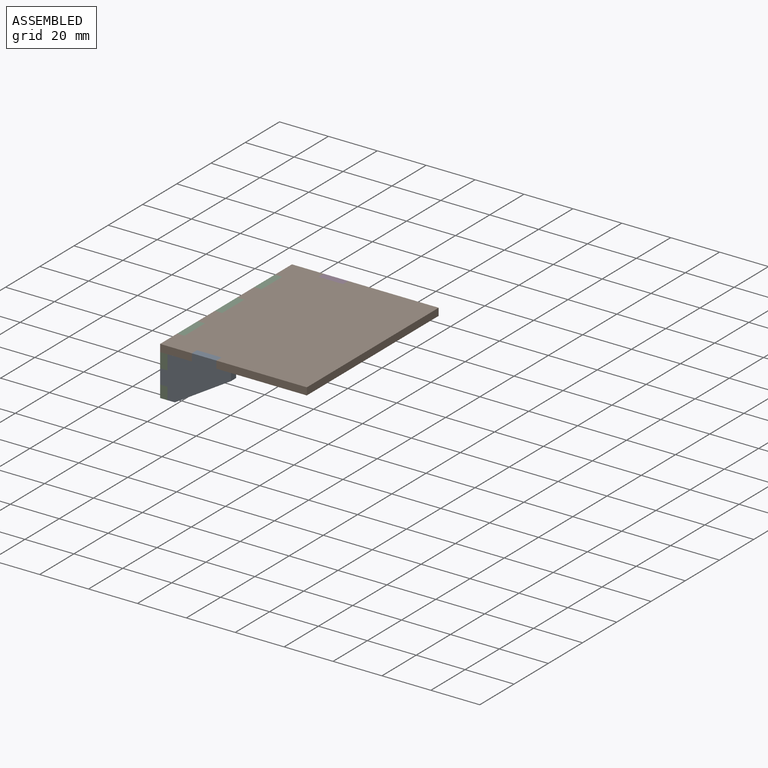
[diagram: assembled view]
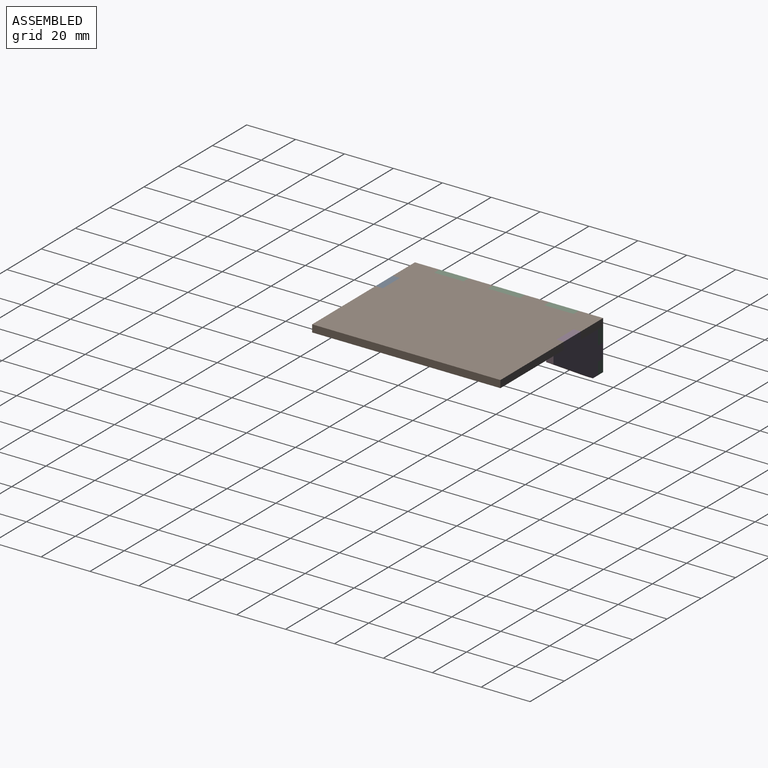
[diagram: assembled view, second angle]
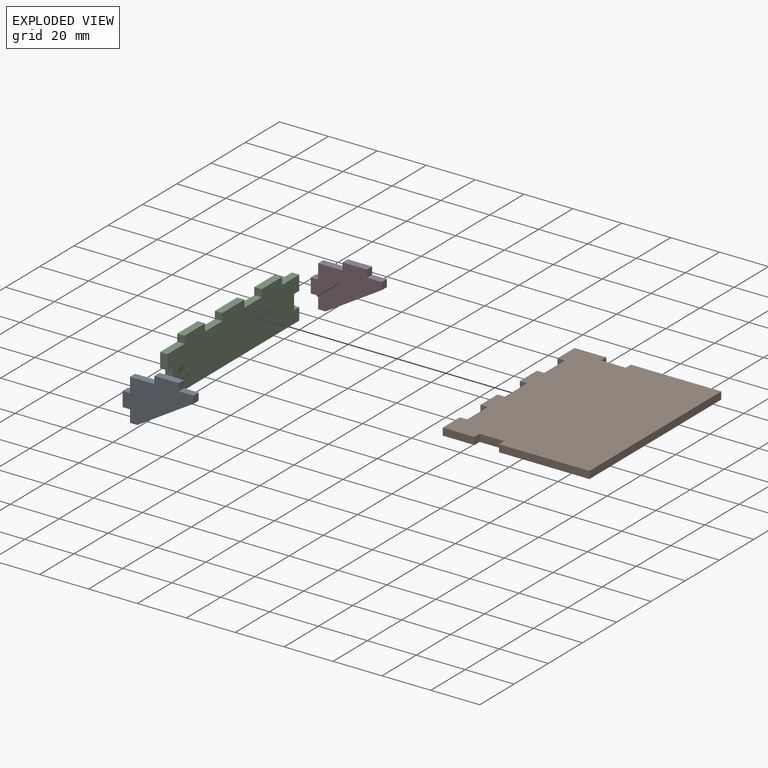
[diagram: exploded view]
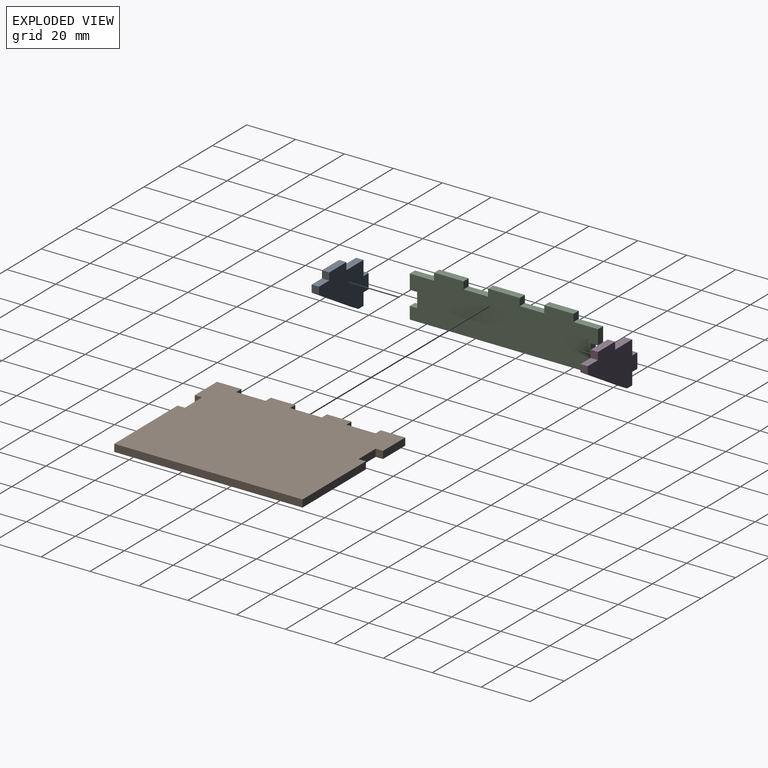
[diagram: exploded view, second angle]
ASSEMBLY  parts=4 mates=11
PART A: 15 faces, bbox 29x3x20 mm
  f0: plane 5x3mm, normal (-1,0,0), area 15mm2, adj f1,f12,f13,f14
  f1: plane 3x3mm, normal (0,0,-1), area 9mm2, adj f0,f2,f13,f14
  f2: plane 23x14mm, normal (0.52,0,-0.85), area 80.8mm2, adj f1,f3,f13,f14
  f3: plane 3x3mm, normal (1,0,0), area 9mm2, adj f2,f4,f13,f14
  f4: plane 6x3mm, normal (0,0,1), area 18mm2, adj f3,f5,f13,f14
  f5: plane 3x3mm, normal (1,0,0), area 9mm2, adj f4,f6,f13,f14
  f6: plane 10x3mm, normal (0,0,1), area 30mm2, adj f5,f7,f13,f14
  f7: plane 3x3mm, normal (-1,0,0), area 9mm2, adj f6,f8,f13,f14
  f8: plane 10x3mm, normal (0,0,1), area 30mm2, adj f7,f9,f13,f14
  f9: plane 6x3mm, normal (-1,0,0), area 18mm2, adj f8,f10,f13,f14
  f10: plane 3x3mm, normal (0,0,1), area 9mm2, adj f9,f11,f13,f14
  f11: plane 6x3mm, normal (-1,0,0), area 18mm2, adj f10,f12,f13,f14
  f12: plane 3x3mm, normal (0,0,-1), area 9mm2, adj f0,f11,f13,f14
  f13: plane 29x20mm, normal (0,-1,0), area 329mm2, adj f0,f1,f2,f3,f4,f5,f6,f7
  f14: plane 29x20mm, normal (0,1,0), area 329mm2, adj f0,f1,f2,f3,f4,f5,f6,f7
PART B: 26 faces, bbox 77x3x60 mm
  f0: plane 37x3mm, normal (1,0,0), area 111mm2, adj f2,f3,f15,f21
  f1: plane 37x3mm, normal (-1,0,0), area 111mm2, adj f2,f3,f15,f25
  f2: plane 77x60mm, normal (0,-1,0), area 4449mm2, adj f0,f1,f4,f5,f6,f7,f8,f9
  f3: plane 77x60mm, normal (0,1,0), area 4449mm2, adj f0,f1,f4,f5,f6,f7,f8,f9
  f4: plane 3x3mm, normal (-1,0,0), area 9mm2, adj f2,f3,f5,f19
  f5: plane 10x3mm, normal (0,0,-1), area 30mm2, adj f2,f3,f4,f6
  f6: plane 3x3mm, normal (1,0,0), area 9mm2, adj f2,f3,f5,f7
  f7: plane 13x3mm, normal (0,0,-1), area 39mm2, adj f2,f3,f6,f8
  f8: plane 3x3mm, normal (-1,0,0), area 9mm2, adj f2,f3,f7,f9
  f9: plane 10x3mm, normal (0,0,-1), area 30mm2, adj f2,f3,f8,f10
  f10: plane 3x3mm, normal (1,0,0), area 9mm2, adj f2,f3,f9,f11
  f11: plane 12x3mm, normal (0,0,-1), area 36mm2, adj f2,f3,f10,f12
  f12: plane 3x3mm, normal (-1,0,0), area 9mm2, adj f2,f3,f11,f13
  f13: plane 10x3mm, normal (0,0,-1), area 30mm2, adj f2,f3,f12,f14
  f14: plane 13x3mm, normal (1,0,0), area 39mm2, adj f2,f3,f13,f20
  f15: plane 77x3mm, normal (0,0,1), area 231mm2, adj f0,f1,f2,f3
  f16: plane 13x3mm, normal (-1,0,0), area 39mm2, adj f2,f3,f17,f23
  f17: plane 10x3mm, normal (0,0,-1), area 30mm2, adj f2,f3,f16,f18
  f18: plane 3x3mm, normal (1,0,0), area 9mm2, adj f2,f3,f17,f19
  f19: plane 12x3mm, normal (0,0,-1), area 36mm2, adj f2,f3,f4,f18
  f20: plane 3x3mm, normal (0,0,1), area 9mm2, adj f2,f3,f14,f22
  f21: plane 3x3mm, normal (0,0,-1), area 9mm2, adj f0,f2,f3,f22
  f22: plane 10x3mm, normal (1,0,0), area 30mm2, adj f2,f3,f20,f21
  f23: plane 3x3mm, normal (0,0,1), area 9mm2, adj f2,f3,f16,f24
  f24: plane 10x3mm, normal (-1,0,0), area 30mm2, adj f2,f3,f23,f25
  f25: plane 3x3mm, normal (0,0,-1), area 9mm2, adj f1,f2,f3,f24
PART C: 26 faces, bbox 77x3x20 mm
  f0: plane 6x3mm, normal (-1,0,0), area 18mm2, adj f2,f3,f6,f20
  f1: plane 6x3mm, normal (1,0,0), area 18mm2, adj f2,f3,f10,f23
  f2: plane 77x20mm, normal (0,-1,0), area 1384mm2, adj f0,f1,f4,f5,f6,f7,f8,f9
  f3: plane 77x20mm, normal (0,1,0), area 1384mm2, adj f0,f1,f4,f5,f6,f7,f8,f9
  f4: plane 12x3mm, normal (0,0,1), area 36mm2, adj f2,f3,f5,f19
  f5: plane 3x3mm, normal (-1,0,0), area 9mm2, adj f2,f3,f4,f6
  f6: plane 10x3mm, normal (0,0,1), area 30mm2, adj f0,f2,f3,f5
  f7: plane 5x3mm, normal (-1,0,0), area 15mm2, adj f2,f3,f8,f21
  f8: plane 77x3mm, normal (0,0,-1), area 231mm2, adj f2,f3,f7,f9
  f9: plane 5x3mm, normal (1,0,0), area 15mm2, adj f2,f3,f8,f25
  f10: plane 10x3mm, normal (0,0,1), area 30mm2, adj f1,f2,f3,f11
  f11: plane 3x3mm, normal (1,0,0), area 9mm2, adj f2,f3,f10,f12
  f12: plane 12x3mm, normal (0,0,1), area 36mm2, adj f2,f3,f11,f13
  f13: plane 3x3mm, normal (-1,0,0), area 9mm2, adj f2,f3,f12,f14
  f14: plane 10x3mm, normal (0,0,1), area 30mm2, adj f2,f3,f13,f15
  f15: plane 3x3mm, normal (1,0,0), area 9mm2, adj f2,f3,f14,f16
  f16: plane 13x3mm, normal (0,0,1), area 39mm2, adj f2,f3,f15,f17
  f17: plane 3x3mm, normal (-1,0,0), area 9mm2, adj f2,f3,f16,f18
  f18: plane 10x3mm, normal (0,0,1), area 30mm2, adj f2,f3,f17,f19
  f19: plane 3x3mm, normal (1,0,0), area 9mm2, adj f2,f3,f4,f18
  f20: plane 3x3mm, normal (0,0,-1), area 9mm2, adj f0,f2,f3,f22
  f21: plane 3x3mm, normal (0,0,1), area 9mm2, adj f2,f3,f7,f22
  f22: plane 6x3mm, normal (-1,0,0), area 18mm2, adj f2,f3,f20,f21
  f23: plane 3x3mm, normal (0,0,-1), area 9mm2, adj f1,f2,f3,f24
  f24: plane 6x3mm, normal (1,0,0), area 18mm2, adj f2,f3,f23,f25
  f25: plane 3x3mm, normal (0,0,1), area 9mm2, adj f2,f3,f9,f24
PART D: same geometry as A
PLACE A t=(-42.33,-1.89,-47.41)mm
PLACE B rot(axis=(-0.58,0.58,-0.58),120deg) t=(-45.33,72.11,-30.41)mm
PLACE C rot(axis=(0,0,-1),90deg) t=(-42.33,72.11,-47.41)mm
PLACE D t=(-42.33,72.11,-47.41)mm
MATE planar B.f24 <-> D.f13  axis (0,1,0) through (-27.33,69.11,-28.91)mm
MATE planar B.f21 <-> A.f5  axis (-1,0,0) through (-22.33,-3.39,-28.91)mm
MATE planar B.f19 <-> C.f3  axis (-1,0,0) through (-42.33,56.11,-28.91)mm
MATE planar A.f4 <-> B.f3  axis (0,0,1) through (-19.33,-3.39,-30.41)mm
MATE planar C.f24 <-> A.f14  axis (0,-1,0) through (-43.83,-1.89,-39.41)mm
MATE parallel C.f11 <-> B.f12  axis (0,-1,0) through (-43.83,5.11,-28.91)mm
MATE planar C.f3 <-> D.f0  axis (1,0,0) through (-42.33,33.61,-38.09)mm
MATE planar B.f3 <-> C.f14  axis (0,0,-1) through (-14.46,33.61,-30.41)mm
MATE parallel B.f11 <-> C.f3  axis (-1,0,0) through (-42.33,11.11,-28.91)mm
MATE planar B.f12 <-> C.f11  axis (0,1,0) through (-43.83,5.11,-28.91)mm
MATE planar B.f3 <-> D.f8  axis (0,0,-1) through (-14.46,33.61,-30.41)mm
